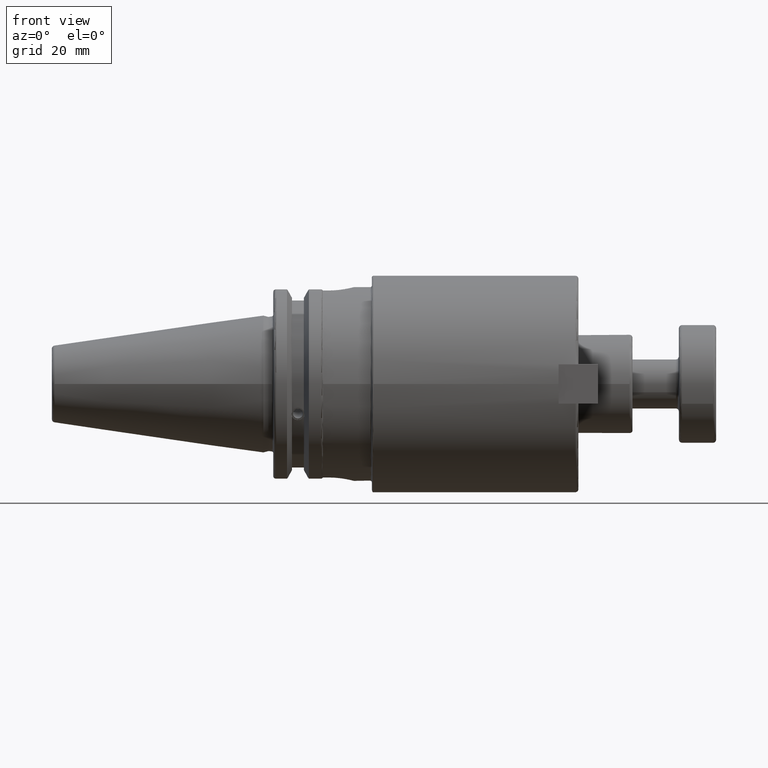
[diagram: clean part render]
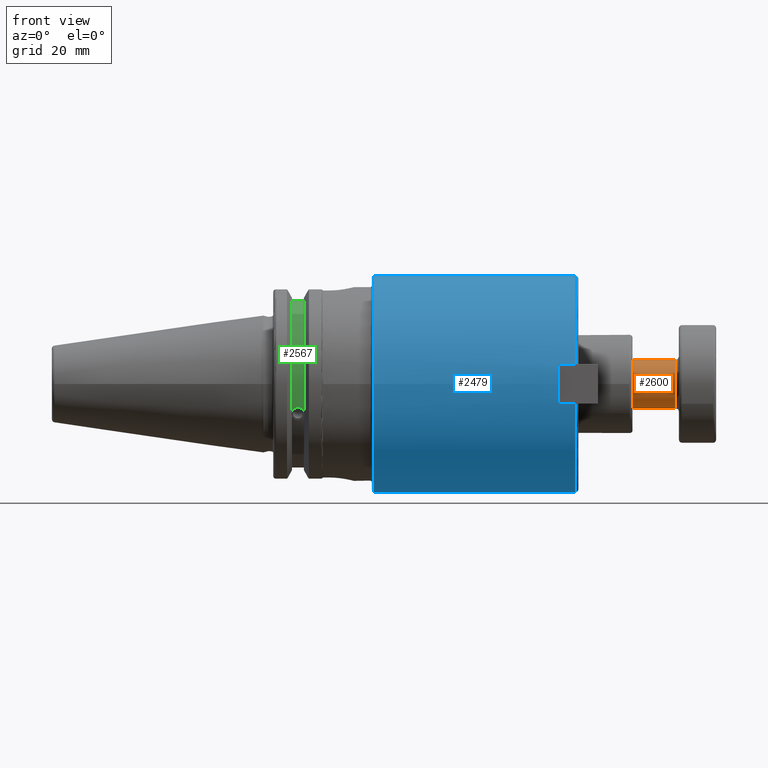
[diagram: same view with three faces highlighted in distinct colors, each labeled with its STEP entity id]
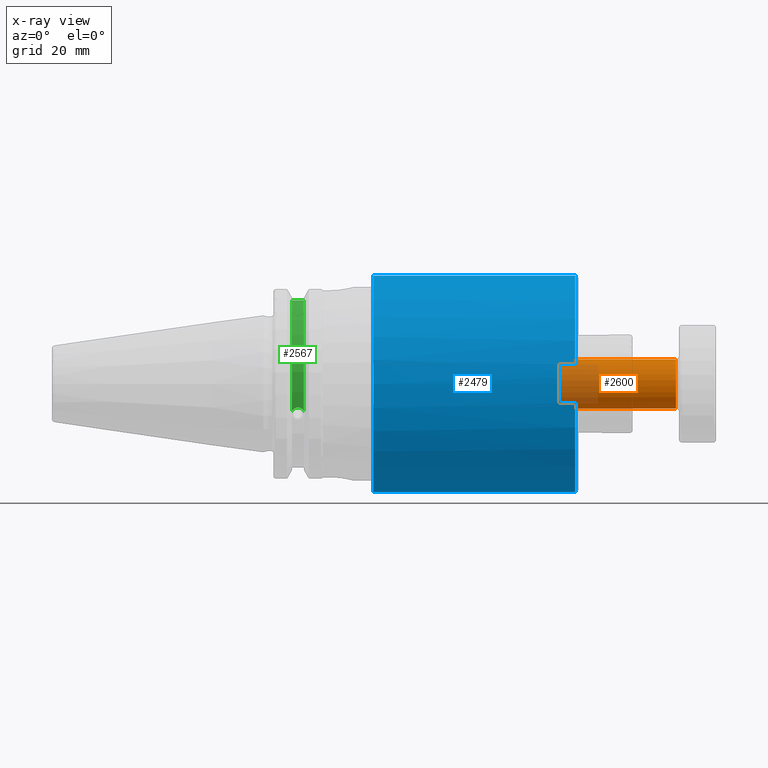
[diagram: x-ray of the same camera — body ghosted, the three highlighted faces saturated]
A machine part, front view with three faces highlighted in distinct colors.
The next image is the same camera in x-ray (body ghosted, the three faces saturated) — at least one of them is partly hidden behind the body in this view.
Their STEP definitions:

[orange] entity #2600 — the highlighted cylindrical surface (bore or boss wall) has radius 7.9375 mm, axis along (-1, -0, -0).
#153=CYLINDRICAL_SURFACE('',#2989,7.9375);
#313=CIRCLE('',#2987,7.9375);
#314=CIRCLE('',#2988,7.9375);
#315=CIRCLE('',#2990,7.9375);
#316=CIRCLE('',#2991,7.9375);
#462=FACE_OUTER_BOUND('',#634,.T.);
#634=EDGE_LOOP('',(#2305,#2306,#2307,#2308,#2309,#2310));
#791=LINE('',#4934,#952);
#952=VECTOR('',#3704,7.9375);
#1238=VERTEX_POINT('',#4927);
#1239=VERTEX_POINT('',#4929);
#1240=VERTEX_POINT('',#4933);
#1241=VERTEX_POINT('',#4935);
#1598=EDGE_CURVE('',#1238,#1239,#313,.T.);
#1599=EDGE_CURVE('',#1239,#1238,#314,.T.);
#1600=EDGE_CURVE('',#1239,#1240,#791,.T.);
#1601=EDGE_CURVE('',#1241,#1240,#315,.T.);
#1602=EDGE_CURVE('',#1240,#1241,#316,.T.);
#2305=ORIENTED_EDGE('',*,*,#1598,.F.);
#2306=ORIENTED_EDGE('',*,*,#1599,.F.);
#2307=ORIENTED_EDGE('',*,*,#1600,.T.);
#2308=ORIENTED_EDGE('',*,*,#1601,.F.);
#2309=ORIENTED_EDGE('',*,*,#1602,.F.);
#2310=ORIENTED_EDGE('',*,*,#1600,.F.);
#2600=ADVANCED_FACE('',(#462),#153,.T.);
#2987=AXIS2_PLACEMENT_3D('',#4930,#3698,#3699);
#2988=AXIS2_PLACEMENT_3D('',#4931,#3700,#3701);
#2989=AXIS2_PLACEMENT_3D('',#4932,#3702,#3703);
#2990=AXIS2_PLACEMENT_3D('',#4936,#3705,#3706);
#2991=AXIS2_PLACEMENT_3D('',#4937,#3707,#3708);
#3698=DIRECTION('center_axis',(1.,0.,0.));
#3699=DIRECTION('ref_axis',(0.,-1.,0.));
#3700=DIRECTION('center_axis',(1.,0.,0.));
#3701=DIRECTION('ref_axis',(0.,-1.,0.));
#3702=DIRECTION('center_axis',(1.,0.,0.));
#3703=DIRECTION('ref_axis',(0.,1.,0.));
#3704=DIRECTION('',(-1.,0.,0.));
#3705=DIRECTION('center_axis',(-1.,0.,0.));
#3706=DIRECTION('ref_axis',(0.,-1.,1.83697019872103E-16));
#3707=DIRECTION('center_axis',(-1.,0.,0.));
#3708=DIRECTION('ref_axis',(0.,-1.,1.83697019872103E-16));
#4927=CARTESIAN_POINT('',(51.,7.9375,9.72063396823212E-16));
#4929=CARTESIAN_POINT('',(51.,-7.9375,-9.72063396823212E-16));
#4930=CARTESIAN_POINT('Origin',(51.,0.,0.));
#4931=CARTESIAN_POINT('Origin',(51.,0.,0.));
#4932=CARTESIAN_POINT('Origin',(32.,0.,0.));
#4933=CARTESIAN_POINT('',(13.,-7.9375,-9.72063396823212E-16));
#4934=CARTESIAN_POINT('',(32.,-7.9375,-9.72063396823212E-16));
#4935=CARTESIAN_POINT('',(13.,-9.72063396823212E-16,7.9375));
#4936=CARTESIAN_POINT('Origin',(13.,0.,0.));
#4937=CARTESIAN_POINT('Origin',(13.,0.,0.));

[blue] entity #2479 — the highlighted cylindrical surface (bore or boss wall) has radius 34.925 mm, axis along (1, 0, 0).
#114=CYLINDRICAL_SURFACE('',#2737,34.925);
#199=CIRCLE('',#2727,34.925);
#201=CIRCLE('',#2729,34.925);
#205=CIRCLE('',#2738,34.925);
#206=CIRCLE('',#2739,34.925);
#207=CIRCLE('',#2740,34.925);
#208=CIRCLE('',#2741,34.925);
#209=CIRCLE('',#2742,34.925);
#341=FACE_OUTER_BOUND('',#491,.T.);
#491=EDGE_LOOP('',(#1675,#1676,#1677,#1678,#1679,#1680,#1681,#1682,#1683,
#1684,#1685,#1686,#1687));
#661=LINE('',#3847,#822);
#666=LINE('',#3882,#827);
#668=LINE('',#3886,#829);
#669=LINE('',#3893,#830);
#670=LINE('',#3897,#831);
#822=VECTOR('',#3046,10.);
#827=VECTOR('',#3073,10.);
#829=VECTOR('',#3077,34.925);
#830=VECTOR('',#3084,10.);
#831=VECTOR('',#3087,10.);
#1021=VERTEX_POINT('',#3830);
#1024=VERTEX_POINT('',#3845);
#1025=VERTEX_POINT('',#3849);
#1027=VERTEX_POINT('',#3853);
#1032=VERTEX_POINT('',#3870);
#1034=VERTEX_POINT('',#3885);
#1035=VERTEX_POINT('',#3887);
#1036=VERTEX_POINT('',#3890);
#1037=VERTEX_POINT('',#3892);
#1038=VERTEX_POINT('',#3894);
#1039=VERTEX_POINT('',#3896);
#1274=EDGE_CURVE('',#1021,#1024,#661,.T.);
#1275=EDGE_CURVE('',#1024,#1025,#199,.T.);
#1278=EDGE_CURVE('',#1025,#1027,#201,.T.);
#1286=EDGE_CURVE('',#1027,#1032,#666,.T.);
#1288=EDGE_CURVE('',#1025,#1034,#668,.T.);
#1289=EDGE_CURVE('',#1035,#1034,#205,.T.);
#1290=EDGE_CURVE('',#1034,#1035,#206,.T.);
#1291=EDGE_CURVE('',#1036,#1032,#207,.T.);
#1292=EDGE_CURVE('',#1036,#1037,#669,.T.);
#1293=EDGE_CURVE('',#1037,#1038,#208,.T.);
#1294=EDGE_CURVE('',#1038,#1039,#670,.T.);
#1295=EDGE_CURVE('',#1021,#1039,#209,.T.);
#1675=ORIENTED_EDGE('',*,*,#1274,.T.);
#1676=ORIENTED_EDGE('',*,*,#1275,.T.);
#1677=ORIENTED_EDGE('',*,*,#1288,.T.);
#1678=ORIENTED_EDGE('',*,*,#1289,.F.);
#1679=ORIENTED_EDGE('',*,*,#1290,.F.);
#1680=ORIENTED_EDGE('',*,*,#1288,.F.);
#1681=ORIENTED_EDGE('',*,*,#1278,.T.);
#1682=ORIENTED_EDGE('',*,*,#1286,.T.);
#1683=ORIENTED_EDGE('',*,*,#1291,.F.);
#1684=ORIENTED_EDGE('',*,*,#1292,.T.);
#1685=ORIENTED_EDGE('',*,*,#1293,.T.);
#1686=ORIENTED_EDGE('',*,*,#1294,.T.);
#1687=ORIENTED_EDGE('',*,*,#1295,.F.);
#2479=ADVANCED_FACE('',(#341),#114,.T.);
#2727=AXIS2_PLACEMENT_3D('',#3850,#3049,#3050);
#2729=AXIS2_PLACEMENT_3D('',#3855,#3054,#3055);
#2737=AXIS2_PLACEMENT_3D('',#3884,#3075,#3076);
#2738=AXIS2_PLACEMENT_3D('',#3888,#3078,#3079);
#2739=AXIS2_PLACEMENT_3D('',#3889,#3080,#3081);
#2740=AXIS2_PLACEMENT_3D('',#3891,#3082,#3083);
#2741=AXIS2_PLACEMENT_3D('',#3895,#3085,#3086);
#2742=AXIS2_PLACEMENT_3D('',#3898,#3088,#3089);
#3046=DIRECTION('',(-1.,0.,0.));
#3049=DIRECTION('center_axis',(-1.,0.,0.));
#3050=DIRECTION('ref_axis',(0.,1.,0.));
#3054=DIRECTION('center_axis',(-1.,0.,0.));
#3055=DIRECTION('ref_axis',(0.,1.,0.));
#3073=DIRECTION('',(1.,0.,0.));
#3075=DIRECTION('center_axis',(1.,0.,0.));
#3076=DIRECTION('ref_axis',(0.,1.,0.));
#3077=DIRECTION('',(-1.,0.,0.));
#3078=DIRECTION('center_axis',(-1.,0.,0.));
#3079=DIRECTION('ref_axis',(0.,-1.,1.83697019872103E-16));
#3080=DIRECTION('center_axis',(-1.,0.,0.));
#3081=DIRECTION('ref_axis',(0.,-1.,1.83697019872103E-16));
#3082=DIRECTION('center_axis',(1.,0.,0.));
#3083=DIRECTION('ref_axis',(0.,-1.,1.83697019872103E-16));
#3084=DIRECTION('',(-1.,0.,0.));
#3085=DIRECTION('center_axis',(-1.,0.,0.));
#3086=DIRECTION('ref_axis',(0.,1.,0.));
#3087=DIRECTION('',(1.,0.,0.));
#3088=DIRECTION('center_axis',(1.,0.,0.));
#3089=DIRECTION('ref_axis',(0.,-1.,1.83697019872103E-16));
#3830=CARTESIAN_POINT('',(100.6,-34.3428758987945,-6.35));
#3845=CARTESIAN_POINT('',(95.25,-34.3428758987945,-6.35));
#3847=CARTESIAN_POINT('',(68.3,-34.3428758987945,-6.35));
#3849=CARTESIAN_POINT('',(95.25,-34.925,-4.27707894602213E-15));
#3850=CARTESIAN_POINT('Origin',(95.25,0.,0.));
#3853=CARTESIAN_POINT('',(95.25,-34.3428758987945,6.35));
#3855=CARTESIAN_POINT('Origin',(95.25,0.,0.));
#3870=CARTESIAN_POINT('',(100.6,-34.3428758987945,6.35));
#3882=CARTESIAN_POINT('',(68.3,-34.3428758987945,6.35));
#3884=CARTESIAN_POINT('Origin',(68.3,0.,0.));
#3885=CARTESIAN_POINT('',(35.5,-34.925,-4.27707894602213E-15));
#3886=CARTESIAN_POINT('',(68.3,-34.925,-4.27707894602213E-15));
#3887=CARTESIAN_POINT('',(35.5,-4.27707894602213E-15,34.925));
#3888=CARTESIAN_POINT('Origin',(35.5,0.,0.));
#3889=CARTESIAN_POINT('Origin',(35.5,0.,0.));
#3890=CARTESIAN_POINT('',(100.6,34.3428758987945,6.35));
#3891=CARTESIAN_POINT('Origin',(100.6,0.,0.));
#3892=CARTESIAN_POINT('',(95.25,34.3428758987945,6.35));
#3893=CARTESIAN_POINT('',(68.3,34.3428758987945,6.35));
#3894=CARTESIAN_POINT('',(95.25,34.3428758987945,-6.35));
#3895=CARTESIAN_POINT('Origin',(95.25,0.,0.));
#3896=CARTESIAN_POINT('',(100.6,34.3428758987945,-6.35));
#3897=CARTESIAN_POINT('',(68.3,34.3428758987945,-6.35));
#3898=CARTESIAN_POINT('Origin',(100.6,0.,0.));

[green] entity #2567 — the highlighted cylindrical surface (partial cylindrical patch) has radius 28.15 mm, axis along (1, 0, 0).
#146=CYLINDRICAL_SURFACE('',#2929,28.15);
#289=CIRCLE('',#2926,28.15);
#291=CIRCLE('',#2930,28.15);
#429=FACE_OUTER_BOUND('',#594,.T.);
#594=EDGE_LOOP('',(#2163,#2164,#2165,#2166));
#735=LINE('',#4590,#896);
#896=VECTOR('',#3434,10.);
#999=B_SPLINE_CURVE_WITH_KNOTS('',3,(#4247,#4248,#4249,#4250,#4251,#4252,
#4253,#4254,#4255,#4256,#4257,#4258,#4259,#4260),.UNSPECIFIED.,.F.,.F.,
(4,2,2,2,2,2,4),(0.401639126382403,0.474814416953736,0.553950208498303,
0.63308600004287,0.712221791587437,0.791357583132004,0.864532873703337),
 .UNSPECIFIED.);
#1099=VERTEX_POINT('',#4244);
#1100=VERTEX_POINT('',#4246);
#1170=VERTEX_POINT('',#4587);
#1171=VERTEX_POINT('',#4589);
#1380=EDGE_CURVE('',#1100,#1099,#999,.T.);
#1479=EDGE_CURVE('',#1171,#1170,#735,.T.);
#1535=EDGE_CURVE('',#1170,#1100,#289,.T.);
#1537=EDGE_CURVE('',#1171,#1099,#291,.T.);
#2163=ORIENTED_EDGE('',*,*,#1380,.T.);
#2164=ORIENTED_EDGE('',*,*,#1537,.F.);
#2165=ORIENTED_EDGE('',*,*,#1479,.T.);
#2166=ORIENTED_EDGE('',*,*,#1535,.T.);
#2567=ADVANCED_FACE('',(#429),#146,.T.);
#2926=AXIS2_PLACEMENT_3D('',#4775,#3544,#3545);
#2929=AXIS2_PLACEMENT_3D('',#4778,#3550,#3551);
#2930=AXIS2_PLACEMENT_3D('',#4779,#3552,#3553);
#3434=DIRECTION('',(-1.,0.,0.));
#3544=DIRECTION('center_axis',(1.,0.,0.));
#3545=DIRECTION('ref_axis',(0.,0.,-1.));
#3550=DIRECTION('center_axis',(1.,0.,0.));
#3551=DIRECTION('ref_axis',(0.,-0.887654187951484,0.46051063246378));
#3552=DIRECTION('center_axis',(1.,0.,0.));
#3553=DIRECTION('ref_axis',(0.,0.,-1.));
#4244=CARTESIAN_POINT('',(13.0491,-26.734714844398,-8.81348524641212));
#4246=CARTESIAN_POINT('',(9.2191,-26.734714844398,-8.81348524641212));
#4247=CARTESIAN_POINT('Ctrl Pts',(9.2191,-26.734714844398,-8.81348524641212));
#4248=CARTESIAN_POINT('Ctrl Pts',(9.32533057097183,-26.8086519721597,-8.58920529678291));
#4249=CARTESIAN_POINT('Ctrl Pts',(9.4768201377051,-26.8729987454904,-8.38416529997369));
#4250=CARTESIAN_POINT('Ctrl Pts',(9.83557062657411,-26.9778908791383,-8.04056861831091));
#4251=CARTESIAN_POINT('Ctrl Pts',(10.0716450112988,-27.0233016799732,-7.88512567185902));
#4252=CARTESIAN_POINT('Ctrl Pts',(10.5890125426388,-27.0826966800569,-7.6786444840004));
#4253=CARTESIAN_POINT('Ctrl Pts',(10.8703140281848,-27.0968804077294,-7.62768458768512));
#4254=CARTESIAN_POINT('Ctrl Pts',(11.3978859718152,-27.0968804077294,-7.62768458768512));
#4255=CARTESIAN_POINT('Ctrl Pts',(11.6791874573612,-27.0826966800569,-7.6786444840004));
#4256=CARTESIAN_POINT('Ctrl Pts',(12.1965549887012,-27.0233016799732,-7.88512567185902));
#4257=CARTESIAN_POINT('Ctrl Pts',(12.4326293734259,-26.9778908791383,-8.04056861831091));
#4258=CARTESIAN_POINT('Ctrl Pts',(12.7913798622949,-26.8729987454904,-8.38416529997369));
#4259=CARTESIAN_POINT('Ctrl Pts',(12.9428694290282,-26.8086519721597,-8.58920529678291));
#4260=CARTESIAN_POINT('Ctrl Pts',(13.0491,-26.734714844398,-8.81348524641212));
#4587=CARTESIAN_POINT('',(9.2191,-8.19,26.932255754021));
#4589=CARTESIAN_POINT('',(13.0491,-8.19,26.932255754021));
#4590=CARTESIAN_POINT('',(11.1341,-8.19,26.932255754021));
#4775=CARTESIAN_POINT('Origin',(9.2191,0.,0.));
#4778=CARTESIAN_POINT('Origin',(11.1341,0.,0.));
#4779=CARTESIAN_POINT('Origin',(13.0491,0.,0.));